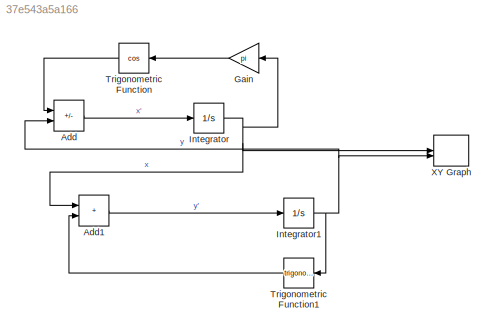
MODEL slx_37e543a5a166
KIND model
CONFIG AbsTol = auto
CONFIG EnableMultiTasking = off
CONFIG FixedStep = auto
CONFIG MaxStep = 1/128
CONFIG MinStep = auto
CONFIG RelTol = 1e-3
CONFIG SampleTimeConstraint = Unconstrained
CONFIG SolverName = VariableStepAuto
CONFIG StartTime = 0.0
CONFIG StopTime = 20
BLOCK [Sum] Add
  IconShape = rectangular
  Inputs = +-
BLOCK [Sum] Add1
  IconShape = rectangular
BLOCK [Gain] Gain
  Gain = pi
  NameLocation = top
BLOCK [Integrator] Integrator
  InitialCondition = 70
BLOCK [Integrator] Integrator1
  InitialCondition = 1
BLOCK [Trigonometry] Trigonometric Function
  NameLocation = top
  Operator = cos
BLOCK [Trigonometry] Trigonometric Function1
  NameLocation = top
BLOCK [Record] XY Graph
  CompatibilityTag = XY
  FileSettingsInternal = {"entries":[{"content":{"excelSettings":{"content":{},"type":"Streamout.ExcelSettings"}},"type":"Streamout.FileSettingStorage","uuid":""}],"packageUris":["http:\/\/schema.mathworks.com\/mf0\/streamout_blocks\/R2020a"],"version":"1.0"}
  Layout = [1 1]
  SignalsInternal = {"entries":[{"content":{"signals":[{"content":{"blockPath":[],"dimensions":[1],"domain":"","lineColor":"#a2142f","plots":[ 1 ],"port":1,"sid":[""],"signalID":1,"signalName":"x"},"type":"RecordBlkView.Signal","uuid":""},{"content":{"blockPath":[],"dimensions":[1],"domain":"","lineColor":"#139fff","plots":[ 1 ],"port":2,"sid":[""],"signalID":2,"signalName":"y"},"type":"RecordBlkView.Signal","uuid":"...<+148ch>
  VisualizationBindings = {"xyplotplugin":{"info":[{"series":[{"bindingParametersList":[{"parameter":"X-Axis","signalID":1,"signalName":"x"},{"parameter":"Y-Axis","signalID":2,"signalName":"y"}],"seriesID":0}],"subplotID":1}]}}
LINE Add1:1 -> Integrator1:1
LINE Add:1 -> Integrator:1
LINE Gain:1 -> Trigonometric Function:1
NET Integrator1:1 -> Add:2, Trigonometric Function1:1, XY Graph:2
NET Integrator:1 -> Add1:1, Gain:1, XY Graph:1
LINE Trigonometric Function1:1 -> Add1:2
LINE Trigonometric Function:1 -> Add:1
note: NET lines group one-source signal fan-out (src -> all destinations, sorted); 1:1 wires keep LINE
